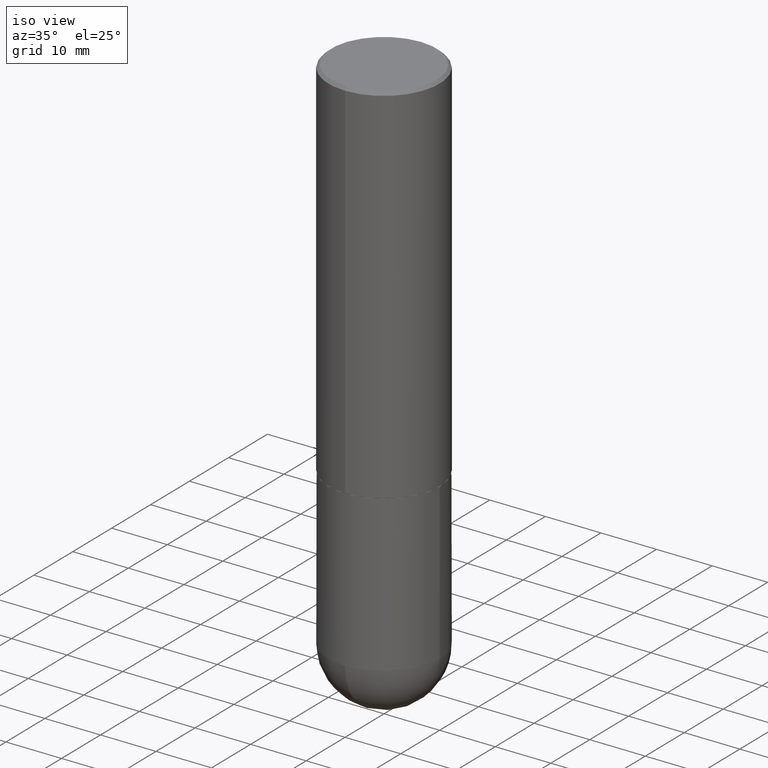
[diagram: clean part render]
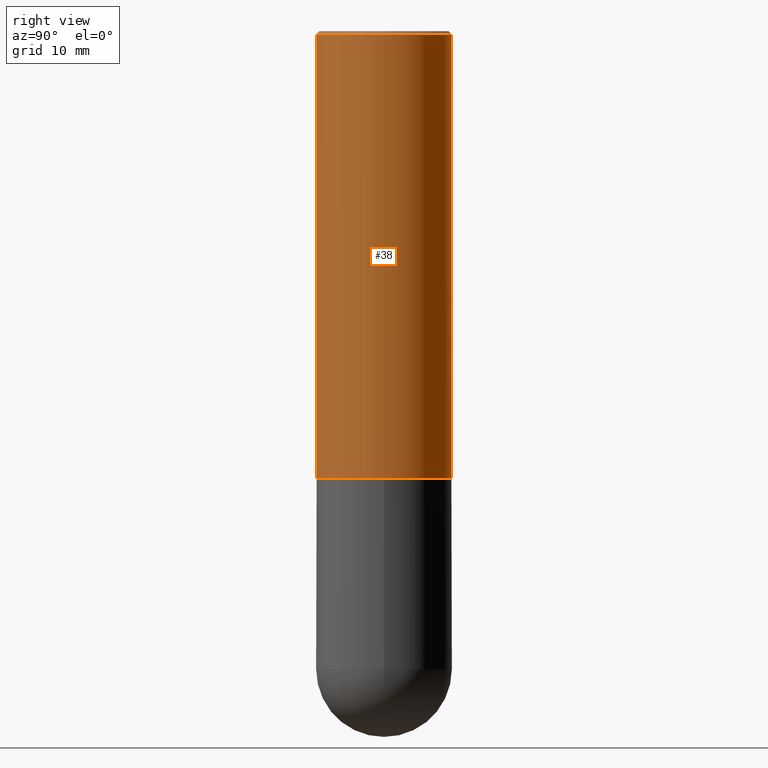
[diagram: tour spotlight — one face highlighted and labeled with its STEP entity id]
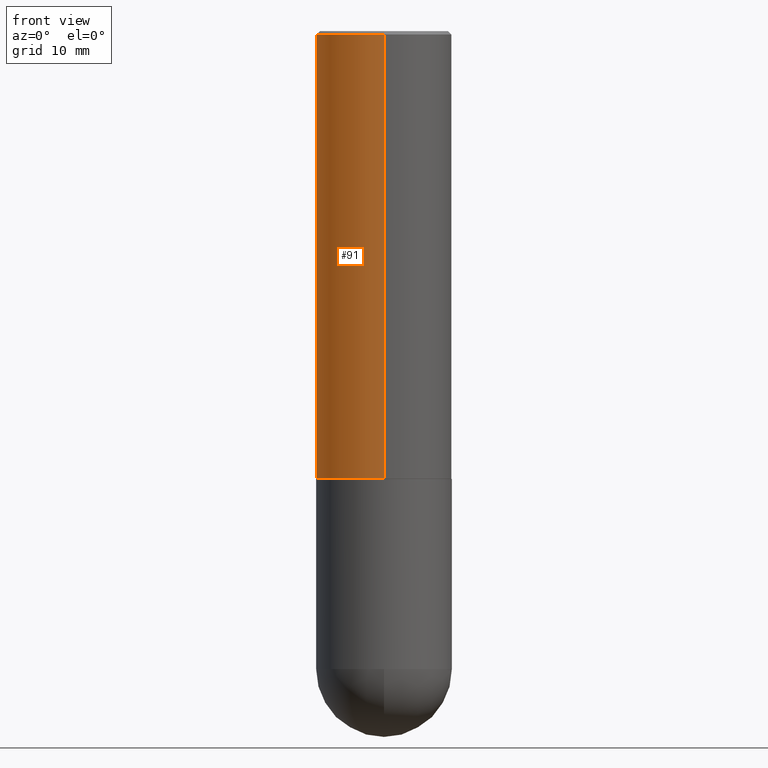
[diagram: tour spotlight — one face highlighted and labeled with its STEP entity id]
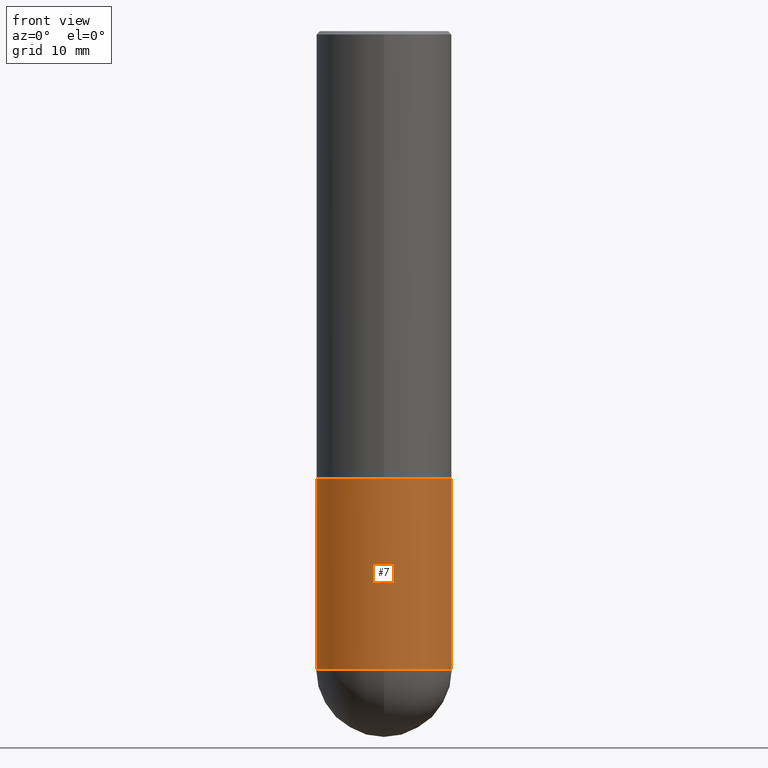
[diagram: tour spotlight — one face highlighted and labeled with its STEP entity id]
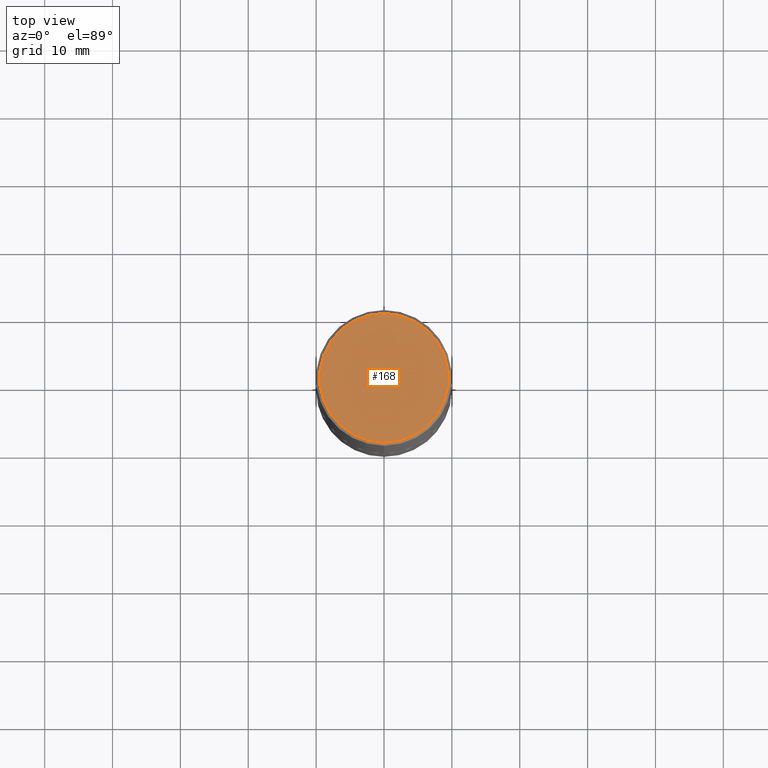
[diagram: tour spotlight — one face highlighted and labeled with its STEP entity id]
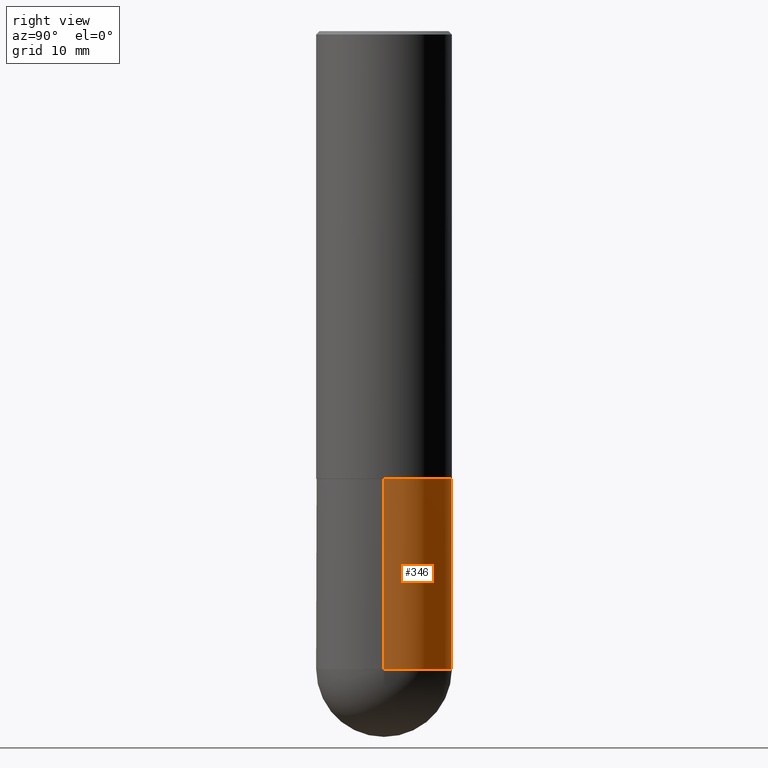
[diagram: tour spotlight — one face highlighted and labeled with its STEP entity id]
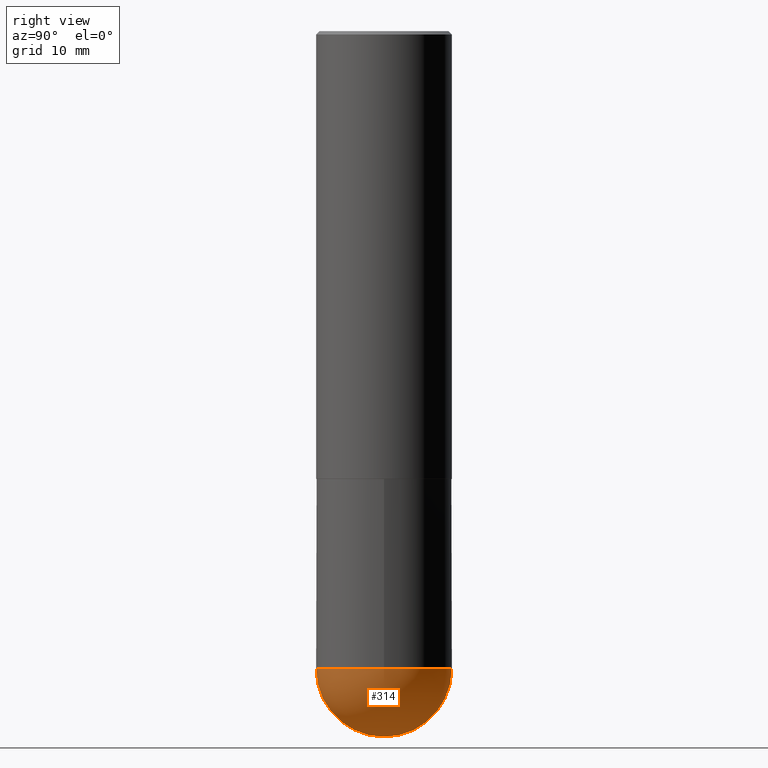
[diagram: tour spotlight — one face highlighted and labeled with its STEP entity id]
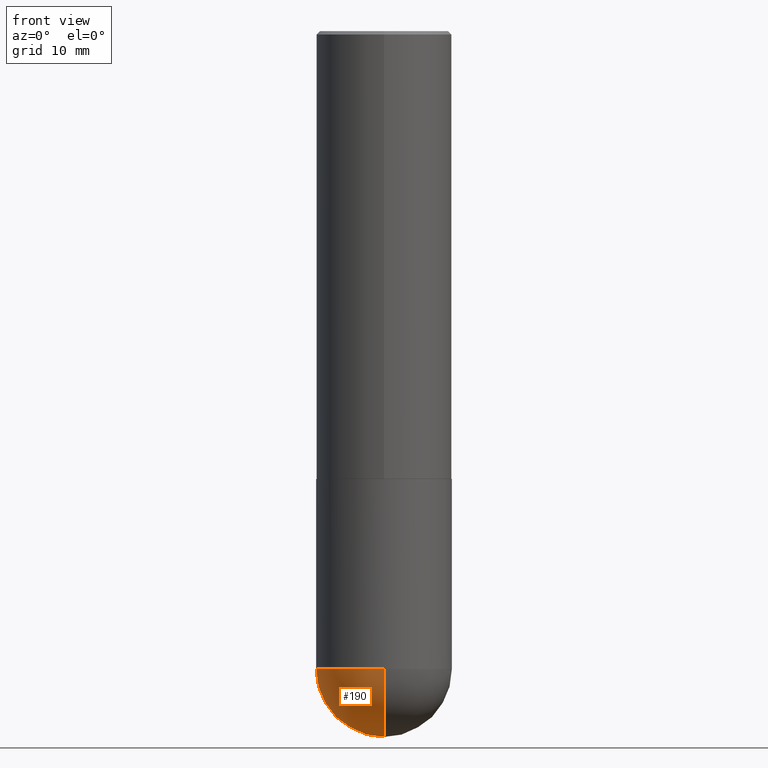
[diagram: tour spotlight — one face highlighted and labeled with its STEP entity id]
A machine part: a face-by-face anatomy tour. The part has 13 B-rep faces; the first image is the clean iso view, then the 7 largest visible faces are spotlighted one at a time (largest first), each with its STEP entity span.

Face 1 — right view, entity #38. In plain terms, the highlighted cylindrical surface (partial cylindrical patch) has radius 10 mm, axis along (-0, 0, 1).
Definition (entity closure, byte-faithful):
#2 = EDGE_CURVE ( 'NONE', #365, #158, #265, .T. ) ;
#27 = AXIS2_PLACEMENT_3D ( 'NONE', #405, #210, #337 ) ;
#38 = ADVANCED_FACE ( 'NONE', ( #132 ), #82, .T. ) ;
#62 = CARTESIAN_POINT ( 'NONE',  ( 6.351852398478368558E-29, -9.068785485090674446E-15, -2.597400000000000375 ) ) ;
#80 = CARTESIAN_POINT ( 'NONE',  ( 2.797406750687515181E-15, 0.3937000000000001609, -1.374598000107876588E-15 ) ) ;
#81 = AXIS2_PLACEMENT_3D ( 'NONE', #171, #296, #141 ) ;
#82 = CYLINDRICAL_SURFACE ( 'NONE', #27, 0.3937000000000001609 ) ;
#93 = ORIENTED_EDGE ( 'NONE', *, *, #275, .F. ) ;
#110 = CARTESIAN_POINT ( 'NONE',  ( -2.700978061722651252E-15, -0.3937000000000001054, -0.01999999999999871672 ) ) ;
#114 = CIRCLE ( 'NONE', #312, 0.3937000000000002720 ) ;
#132 = FACE_OUTER_BOUND ( 'NONE', #224, .T. ) ;
#135 = VERTEX_POINT ( 'NONE', #304 ) ;
#139 = DIRECTION ( 'NONE',  ( -2.445465618879790476E-29, 3.491485903245811789E-15, 1.000000000000000000 ) ) ;
#141 = DIRECTION ( 'NONE',  ( -6.982962677686265133E-15, -1.000000000000000000, 3.491137977679279424E-15 ) ) ;
#146 = CARTESIAN_POINT ( 'NONE',  ( -2.749192406205084005E-15, -0.3937000000000001609, 1.374598000107876588E-15 ) ) ;
#158 = VERTEX_POINT ( 'NONE', #110 ) ;
#171 = CARTESIAN_POINT ( 'NONE',  ( 4.890931237759601867E-31, -6.982971806491655133E-17, -0.02000000000000009062 ) ) ;
#188 = VECTOR ( 'NONE', #213, 39.37007874015748143 ) ;
#193 = VERTEX_POINT ( 'NONE', #260 ) ;
#210 = DIRECTION ( 'NONE',  ( -2.445465618879790196E-29, 3.491485903245811789E-15, 1.000000000000000000 ) ) ;
#213 = DIRECTION ( 'NONE',  ( -2.445465618879790476E-29, 3.491485903245811789E-15, 1.000000000000000000 ) ) ;
#217 = EDGE_CURVE ( 'NONE', #193, #135, #360, .T. ) ;
#224 = EDGE_LOOP ( 'NONE', ( #281, #399, #93, #287 ) ) ;
#231 = CARTESIAN_POINT ( 'NONE',  ( -2.749192406205021291E-15, -0.3937000000000093758, -2.597399999999999043 ) ) ;
#253 = DIRECTION ( 'NONE',  ( -6.982962677686265922E-15, -1.000000000000000000, 4.163344669033672479E-15 ) ) ;
#260 = CARTESIAN_POINT ( 'NONE',  ( 2.797406750687547524E-15, 0.3936999999999912236, -2.597400000000002152 ) ) ;
#265 = LINE ( 'NONE', #146, #282 ) ;
#275 = EDGE_CURVE ( 'NONE', #158, #135, #290, .T. ) ;
#279 = DIRECTION ( 'NONE',  ( -2.445465618879790196E-29, 3.491485903245811789E-15, 1.000000000000000000 ) ) ;
#281 = ORIENTED_EDGE ( 'NONE', *, *, #307, .T. ) ;
#282 = VECTOR ( 'NONE', #139, 39.37007874015748143 ) ;
#287 = ORIENTED_EDGE ( 'NONE', *, *, #2, .F. ) ;
#290 = CIRCLE ( 'NONE', #81, 0.3937000000000000499 ) ;
#296 = DIRECTION ( 'NONE',  ( -2.445465618879790196E-29, 3.491485903245811789E-15, 1.000000000000000000 ) ) ;
#304 = CARTESIAN_POINT ( 'NONE',  ( 2.749192406205083217E-15, 0.3936999999999999389, -0.02000000000000146452 ) ) ;
#307 = EDGE_CURVE ( 'NONE', #365, #193, #114, .T. ) ;
#312 = AXIS2_PLACEMENT_3D ( 'NONE', #62, #279, #253 ) ;
#337 = DIRECTION ( 'NONE',  ( -6.982962677686265922E-15, -1.000000000000000000, 3.491485903245811789E-15 ) ) ;
#360 = LINE ( 'NONE', #80, #188 ) ;
#365 = VERTEX_POINT ( 'NONE', #231 ) ;
#399 = ORIENTED_EDGE ( 'NONE', *, *, #217, .T. ) ;
#405 = CARTESIAN_POINT ( 'NONE',  ( 0.000000000000000000, 0.000000000000000000, 0.000000000000000000 ) ) ;

Face 2 — front view, entity #91. In plain terms, the highlighted cylindrical surface (partial cylindrical patch) has radius 10 mm, axis along (-0, 0, 1).
Definition (entity closure, byte-faithful):
#2 = EDGE_CURVE ( 'NONE', #365, #158, #265, .T. ) ;
#16 = DIRECTION ( 'NONE',  ( -6.982962677686265133E-15, -1.000000000000000000, 3.491137977679279424E-15 ) ) ;
#32 = EDGE_CURVE ( 'NONE', #193, #365, #47, .T. ) ;
#39 = AXIS2_PLACEMENT_3D ( 'NONE', #268, #359, #43 ) ;
#41 = DIRECTION ( 'NONE',  ( -6.982962677686265922E-15, -1.000000000000000000, 3.491485903245811789E-15 ) ) ;
#43 = DIRECTION ( 'NONE',  ( -6.982962677686265922E-15, -1.000000000000000000, 4.163344669033672479E-15 ) ) ;
#47 = CIRCLE ( 'NONE', #39, 0.3937000000000002720 ) ;
#49 = AXIS2_PLACEMENT_3D ( 'NONE', #107, #180, #41 ) ;
#80 = CARTESIAN_POINT ( 'NONE',  ( 2.797406750687515181E-15, 0.3937000000000001609, -1.374598000107876588E-15 ) ) ;
#87 = AXIS2_PLACEMENT_3D ( 'NONE', #403, #274, #16 ) ;
#91 = ADVANCED_FACE ( 'NONE', ( #179 ), #211, .T. ) ;
#107 = CARTESIAN_POINT ( 'NONE',  ( 0.000000000000000000, 0.000000000000000000, 0.000000000000000000 ) ) ;
#110 = CARTESIAN_POINT ( 'NONE',  ( -2.700978061722651252E-15, -0.3937000000000001054, -0.01999999999999871672 ) ) ;
#125 = CIRCLE ( 'NONE', #87, 0.3937000000000000499 ) ;
#135 = VERTEX_POINT ( 'NONE', #304 ) ;
#137 = EDGE_CURVE ( 'NONE', #135, #158, #125, .T. ) ;
#139 = DIRECTION ( 'NONE',  ( -2.445465618879790476E-29, 3.491485903245811789E-15, 1.000000000000000000 ) ) ;
#143 = ORIENTED_EDGE ( 'NONE', *, *, #2, .T. ) ;
#146 = CARTESIAN_POINT ( 'NONE',  ( -2.749192406205084005E-15, -0.3937000000000001609, 1.374598000107876588E-15 ) ) ;
#158 = VERTEX_POINT ( 'NONE', #110 ) ;
#179 = FACE_OUTER_BOUND ( 'NONE', #371, .T. ) ;
#180 = DIRECTION ( 'NONE',  ( -2.445465618879790196E-29, 3.491485903245811789E-15, 1.000000000000000000 ) ) ;
#188 = VECTOR ( 'NONE', #213, 39.37007874015748143 ) ;
#193 = VERTEX_POINT ( 'NONE', #260 ) ;
#211 = CYLINDRICAL_SURFACE ( 'NONE', #49, 0.3937000000000001609 ) ;
#213 = DIRECTION ( 'NONE',  ( -2.445465618879790476E-29, 3.491485903245811789E-15, 1.000000000000000000 ) ) ;
#217 = EDGE_CURVE ( 'NONE', #193, #135, #360, .T. ) ;
#231 = CARTESIAN_POINT ( 'NONE',  ( -2.749192406205021291E-15, -0.3937000000000093758, -2.597399999999999043 ) ) ;
#251 = ORIENTED_EDGE ( 'NONE', *, *, #217, .F. ) ;
#260 = CARTESIAN_POINT ( 'NONE',  ( 2.797406750687547524E-15, 0.3936999999999912236, -2.597400000000002152 ) ) ;
#265 = LINE ( 'NONE', #146, #282 ) ;
#268 = CARTESIAN_POINT ( 'NONE',  ( 6.351852398478368558E-29, -9.068785485090674446E-15, -2.597400000000000375 ) ) ;
#274 = DIRECTION ( 'NONE',  ( -2.445465618879790196E-29, 3.491485903245811789E-15, 1.000000000000000000 ) ) ;
#282 = VECTOR ( 'NONE', #139, 39.37007874015748143 ) ;
#285 = ORIENTED_EDGE ( 'NONE', *, *, #32, .T. ) ;
#304 = CARTESIAN_POINT ( 'NONE',  ( 2.749192406205083217E-15, 0.3936999999999999389, -0.02000000000000146452 ) ) ;
#352 = ORIENTED_EDGE ( 'NONE', *, *, #137, .F. ) ;
#359 = DIRECTION ( 'NONE',  ( -2.445465618879790196E-29, 3.491485903245811789E-15, 1.000000000000000000 ) ) ;
#360 = LINE ( 'NONE', #80, #188 ) ;
#365 = VERTEX_POINT ( 'NONE', #231 ) ;
#371 = EDGE_LOOP ( 'NONE', ( #251, #285, #143, #352 ) ) ;
#403 = CARTESIAN_POINT ( 'NONE',  ( 4.890931237759601867E-31, -6.982971806491655133E-17, -0.02000000000000009062 ) ) ;

Face 3 — front view, entity #7. In plain terms, the highlighted cylindrical surface (partial cylindrical patch) has radius 10 mm, axis along (-0, 0, 1).
Definition (entity closure, byte-faithful):
#7 = ADVANCED_FACE ( 'NONE', ( #233 ), #207, .T. ) ;
#9 = DIRECTION ( 'NONE',  ( -2.445468806185136597E-29, 3.491481338843145583E-15, 1.000000000000000000 ) ) ;
#10 = VERTEX_POINT ( 'NONE', #177 ) ;
#11 = CARTESIAN_POINT ( 'NONE',  ( 9.050190957929953666E-29, -1.292127413879071357E-14, -3.700800000000000090 ) ) ;
#23 = DIRECTION ( 'NONE',  ( -2.445468806185136597E-29, 3.491481338843145583E-15, 1.000000000000000000 ) ) ;
#30 = AXIS2_PLACEMENT_3D ( 'NONE', #11, #392, #96 ) ;
#34 = CARTESIAN_POINT ( 'NONE',  ( -0.3937000000000000499, -8.199362874132856734E-15, -2.598400000000000265 ) ) ;
#48 = DIRECTION ( 'NONE',  ( 1.000000000000000000, -6.982962677686267499E-15, 0.000000000000000000 ) ) ;
#55 = LINE ( 'NONE', #328, #183 ) ;
#57 = EDGE_CURVE ( 'NONE', #194, #388, #295, .T. ) ;
#64 = VECTOR ( 'NONE', #164, 39.37007874015748143 ) ;
#73 = ORIENTED_EDGE ( 'NONE', *, *, #257, .F. ) ;
#75 = ORIENTED_EDGE ( 'NONE', *, *, #336, .T. ) ;
#85 = DIRECTION ( 'NONE',  ( -2.445468806185136877E-29, 3.491481338843145188E-15, 1.000000000000000000 ) ) ;
#86 = AXIS2_PLACEMENT_3D ( 'NONE', #262, #402, #334 ) ;
#92 = AXIS2_PLACEMENT_3D ( 'NONE', #308, #23, #48 ) ;
#96 = DIRECTION ( 'NONE',  ( 1.000000000000000000, -6.982962677686266711E-15, 0.000000000000000000 ) ) ;
#105 = CARTESIAN_POINT ( 'NONE',  ( 0.3937000000000001054, -2.749192406205084005E-15, 1.919750796630860452E-29 ) ) ;
#106 = EDGE_CURVE ( 'NONE', #326, #388, #159, .T. ) ;
#129 = AXIS2_PLACEMENT_3D ( 'NONE', #289, #9, #131 ) ;
#131 = DIRECTION ( 'NONE',  ( 1.000000000000000000, -6.982962677686266711E-15, 0.000000000000000000 ) ) ;
#159 = CIRCLE ( 'NONE', #92, 0.3937000000000000499 ) ;
#164 = DIRECTION ( 'NONE',  ( -2.445468806185136877E-29, 3.491481338843145188E-15, 1.000000000000000000 ) ) ;
#167 = ORIENTED_EDGE ( 'NONE', *, *, #106, .F. ) ;
#169 = CARTESIAN_POINT ( 'NONE',  ( 0.3937000000000001054, -1.374596203102546026E-14, -3.700800000000000090 ) ) ;
#177 = CARTESIAN_POINT ( 'NONE',  ( -0.3937000000000001054, -8.199362874132859889E-15, -3.700800000000000090 ) ) ;
#183 = VECTOR ( 'NONE', #85, 39.37007874015748143 ) ;
#194 = VERTEX_POINT ( 'NONE', #169 ) ;
#201 = EDGE_LOOP ( 'NONE', ( #73, #75, #255, #384, #167 ) ) ;
#207 = CYLINDRICAL_SURFACE ( 'NONE', #86, 0.3937000000000001054 ) ;
#233 = FACE_OUTER_BOUND ( 'NONE', #201, .T. ) ;
#255 = ORIENTED_EDGE ( 'NONE', *, *, #327, .T. ) ;
#257 = EDGE_CURVE ( 'NONE', #10, #326, #55, .T. ) ;
#262 = CARTESIAN_POINT ( 'NONE',  ( 0.000000000000000000, 0.000000000000000000, 0.000000000000000000 ) ) ;
#283 = CIRCLE ( 'NONE', #30, 0.3937000000000001054 ) ;
#289 = CARTESIAN_POINT ( 'NONE',  ( 9.050190957929953666E-29, -1.292127413879071357E-14, -3.700800000000000090 ) ) ;
#293 = VERTEX_POINT ( 'NONE', #375 ) ;
#295 = LINE ( 'NONE', #105, #64 ) ;
#308 = CARTESIAN_POINT ( 'NONE',  ( 6.354306145991459756E-29, -9.072265110850031044E-15, -2.598400000000000265 ) ) ;
#320 = CARTESIAN_POINT ( 'NONE',  ( 0.3937000000000000499, -1.182145751705511584E-14, -2.598400000000000265 ) ) ;
#326 = VERTEX_POINT ( 'NONE', #34 ) ;
#327 = EDGE_CURVE ( 'NONE', #293, #194, #377, .T. ) ;
#328 = CARTESIAN_POINT ( 'NONE',  ( -0.3937000000000001054, 2.797406750687515181E-15, -1.936584745033357016E-29 ) ) ;
#334 = DIRECTION ( 'NONE',  ( 1.000000000000000000, -6.982962677686266711E-15, 4.876176775795935793E-29 ) ) ;
#336 = EDGE_CURVE ( 'NONE', #10, #293, #283, .T. ) ;
#375 = CARTESIAN_POINT ( 'NONE',  ( -2.797406750687426828E-15, -0.3937000000000133171, -3.700799999999998313 ) ) ;
#377 = CIRCLE ( 'NONE', #129, 0.3937000000000001054 ) ;
#384 = ORIENTED_EDGE ( 'NONE', *, *, #57, .T. ) ;
#388 = VERTEX_POINT ( 'NONE', #320 ) ;
#392 = DIRECTION ( 'NONE',  ( -2.445468806185136597E-29, 3.491481338843145583E-15, 1.000000000000000000 ) ) ;
#402 = DIRECTION ( 'NONE',  ( -2.445468806185136597E-29, 3.491481338843145583E-15, 1.000000000000000000 ) ) ;

Face 4 — top view, entity #168. In plain terms, the highlighted planar face has unit normal (0, -0, -1).
Definition (entity closure, byte-faithful):
#21 = VERTEX_POINT ( 'NONE', #109 ) ;
#31 = AXIS2_PLACEMENT_3D ( 'NONE', #166, #332, #50 ) ;
#50 = DIRECTION ( 'NONE',  ( -6.982962677686265922E-15, -1.000000000000000000, 3.491485903245811789E-15 ) ) ;
#52 = DIRECTION ( 'NONE',  ( -2.445465618879790196E-29, 3.491485903245811789E-15, 1.000000000000000000 ) ) ;
#68 = VERTEX_POINT ( 'NONE', #150 ) ;
#77 = PLANE ( 'NONE',  #315 ) ;
#90 = DIRECTION ( 'NONE',  ( -6.982962677686265922E-15, -1.000000000000000000, 3.491485903245811789E-15 ) ) ;
#109 = CARTESIAN_POINT ( 'NONE',  ( -2.632373081744936315E-15, -0.3737000000000000322, 1.291964450289935158E-15 ) ) ;
#115 = DIRECTION ( 'NONE',  ( 6.982962677686265922E-15, 1.000000000000000000, -3.491485903245811789E-15 ) ) ;
#136 = CARTESIAN_POINT ( 'NONE',  ( 2.609533152651357803E-15, 0.3737000000000000322, -1.311170197919472574E-15 ) ) ;
#150 = CARTESIAN_POINT ( 'NONE',  ( 2.679362779428220707E-15, 0.3737000000000000322, -1.317572113795984915E-15 ) ) ;
#156 = CIRCLE ( 'NONE', #31, 0.3737000000000000322 ) ;
#166 = CARTESIAN_POINT ( 'NONE',  ( 3.131133034194372146E-46, -4.470439807321751239E-32, -1.280383175302489090E-17 ) ) ;
#168 = ADVANCED_FACE ( 'NONE', ( #363 ), #77, .F. ) ;
#192 = AXIS2_PLACEMENT_3D ( 'NONE', #209, #52, #90 ) ;
#209 = CARTESIAN_POINT ( 'NONE',  ( 3.131133034194372146E-46, -4.470439807321751239E-32, -1.280383175302489090E-17 ) ) ;
#221 = EDGE_LOOP ( 'NONE', ( #391, #386 ) ) ;
#223 = CIRCLE ( 'NONE', #192, 0.3737000000000000322 ) ;
#288 = EDGE_CURVE ( 'NONE', #68, #21, #223, .T. ) ;
#315 = AXIS2_PLACEMENT_3D ( 'NONE', #136, #409, #115 ) ;
#332 = DIRECTION ( 'NONE',  ( -2.445465618879790196E-29, 3.491485903245811789E-15, 1.000000000000000000 ) ) ;
#363 = FACE_OUTER_BOUND ( 'NONE', #221, .T. ) ;
#378 = EDGE_CURVE ( 'NONE', #21, #68, #156, .T. ) ;
#386 = ORIENTED_EDGE ( 'NONE', *, *, #378, .T. ) ;
#391 = ORIENTED_EDGE ( 'NONE', *, *, #288, .T. ) ;
#409 = DIRECTION ( 'NONE',  ( 2.445465618879789916E-29, -3.491485903245811789E-15, -1.000000000000000000 ) ) ;

Face 5 — right view, entity #346. In plain terms, the highlighted cylindrical surface (partial cylindrical patch) has radius 10 mm, axis along (-0, 0, 1).
Definition (entity closure, byte-faithful):
#1 = AXIS2_PLACEMENT_3D ( 'NONE', #306, #272, #25 ) ;
#10 = VERTEX_POINT ( 'NONE', #177 ) ;
#25 = DIRECTION ( 'NONE',  ( 1.000000000000000000, -6.982962677686266711E-15, 0.000000000000000000 ) ) ;
#34 = CARTESIAN_POINT ( 'NONE',  ( -0.3937000000000000499, -8.199362874132856734E-15, -2.598400000000000265 ) ) ;
#54 = CARTESIAN_POINT ( 'NONE',  ( 2.749192406205173147E-15, 0.3936999999999871158, -3.700800000000001866 ) ) ;
#55 = LINE ( 'NONE', #328, #183 ) ;
#57 = EDGE_CURVE ( 'NONE', #194, #388, #295, .T. ) ;
#64 = VECTOR ( 'NONE', #164, 39.37007874015748143 ) ;
#65 = DIRECTION ( 'NONE',  ( 1.000000000000000000, -6.982962677686266711E-15, 4.876176775795935793E-29 ) ) ;
#66 = ORIENTED_EDGE ( 'NONE', *, *, #124, .F. ) ;
#71 = CARTESIAN_POINT ( 'NONE',  ( 9.050190957929953666E-29, -1.292127413879071357E-14, -3.700800000000000090 ) ) ;
#72 = ORIENTED_EDGE ( 'NONE', *, *, #57, .F. ) ;
#76 = EDGE_CURVE ( 'NONE', #79, #10, #254, .T. ) ;
#78 = DIRECTION ( 'NONE',  ( 1.000000000000000000, -6.982962677686266711E-15, 0.000000000000000000 ) ) ;
#79 = VERTEX_POINT ( 'NONE', #54 ) ;
#85 = DIRECTION ( 'NONE',  ( -2.445468806185136877E-29, 3.491481338843145188E-15, 1.000000000000000000 ) ) ;
#102 = AXIS2_PLACEMENT_3D ( 'NONE', #71, #235, #78 ) ;
#105 = CARTESIAN_POINT ( 'NONE',  ( 0.3937000000000001054, -2.749192406205084005E-15, 1.919750796630860452E-29 ) ) ;
#124 = EDGE_CURVE ( 'NONE', #388, #326, #398, .T. ) ;
#133 = DIRECTION ( 'NONE',  ( -2.445468806185136597E-29, 3.491481338843145583E-15, 1.000000000000000000 ) ) ;
#148 = DIRECTION ( 'NONE',  ( -2.445468806185136597E-29, 3.491481338843145583E-15, 1.000000000000000000 ) ) ;
#152 = CARTESIAN_POINT ( 'NONE',  ( 6.354306145991459756E-29, -9.072265110850031044E-15, -2.598400000000000265 ) ) ;
#164 = DIRECTION ( 'NONE',  ( -2.445468806185136877E-29, 3.491481338843145188E-15, 1.000000000000000000 ) ) ;
#169 = CARTESIAN_POINT ( 'NONE',  ( 0.3937000000000001054, -1.374596203102546026E-14, -3.700800000000000090 ) ) ;
#175 = DIRECTION ( 'NONE',  ( 1.000000000000000000, -6.982962677686267499E-15, 0.000000000000000000 ) ) ;
#177 = CARTESIAN_POINT ( 'NONE',  ( -0.3937000000000001054, -8.199362874132859889E-15, -3.700800000000000090 ) ) ;
#183 = VECTOR ( 'NONE', #85, 39.37007874015748143 ) ;
#194 = VERTEX_POINT ( 'NONE', #169 ) ;
#196 = CARTESIAN_POINT ( 'NONE',  ( 0.000000000000000000, 0.000000000000000000, 0.000000000000000000 ) ) ;
#198 = EDGE_LOOP ( 'NONE', ( #355, #348, #66, #72, #362 ) ) ;
#226 = FACE_OUTER_BOUND ( 'NONE', #198, .T. ) ;
#235 = DIRECTION ( 'NONE',  ( -2.445468806185136597E-29, 3.491481338843145583E-15, 1.000000000000000000 ) ) ;
#254 = CIRCLE ( 'NONE', #1, 0.3937000000000001054 ) ;
#257 = EDGE_CURVE ( 'NONE', #10, #326, #55, .T. ) ;
#272 = DIRECTION ( 'NONE',  ( -2.445468806185136597E-29, 3.491481338843145583E-15, 1.000000000000000000 ) ) ;
#278 = CIRCLE ( 'NONE', #102, 0.3937000000000001054 ) ;
#295 = LINE ( 'NONE', #105, #64 ) ;
#306 = CARTESIAN_POINT ( 'NONE',  ( 9.050190957929953666E-29, -1.292127413879071357E-14, -3.700800000000000090 ) ) ;
#320 = CARTESIAN_POINT ( 'NONE',  ( 0.3937000000000000499, -1.182145751705511584E-14, -2.598400000000000265 ) ) ;
#322 = AXIS2_PLACEMENT_3D ( 'NONE', #152, #148, #175 ) ;
#326 = VERTEX_POINT ( 'NONE', #34 ) ;
#328 = CARTESIAN_POINT ( 'NONE',  ( -0.3937000000000001054, 2.797406750687515181E-15, -1.936584745033357016E-29 ) ) ;
#342 = AXIS2_PLACEMENT_3D ( 'NONE', #196, #133, #65 ) ;
#346 = ADVANCED_FACE ( 'NONE', ( #226 ), #353, .T. ) ;
#348 = ORIENTED_EDGE ( 'NONE', *, *, #257, .T. ) ;
#353 = CYLINDRICAL_SURFACE ( 'NONE', #342, 0.3937000000000001054 ) ;
#355 = ORIENTED_EDGE ( 'NONE', *, *, #76, .T. ) ;
#362 = ORIENTED_EDGE ( 'NONE', *, *, #368, .T. ) ;
#368 = EDGE_CURVE ( 'NONE', #194, #79, #278, .T. ) ;
#388 = VERTEX_POINT ( 'NONE', #320 ) ;
#398 = CIRCLE ( 'NONE', #322, 0.3937000000000000499 ) ;

Face 6 — right view, entity #314. In plain terms, the highlighted spherical surface has radius 10 mm.
Definition (entity closure, byte-faithful):
#9 = DIRECTION ( 'NONE',  ( -2.445468806185136597E-29, 3.491481338843145583E-15, 1.000000000000000000 ) ) ;
#19 = ORIENTED_EDGE ( 'NONE', *, *, #327, .F. ) ;
#36 = DIRECTION ( 'NONE',  ( 6.982962677686265922E-15, 1.000000000000000000, -4.163344669033671690E-15 ) ) ;
#51 = ORIENTED_EDGE ( 'NONE', *, *, #252, .F. ) ;
#54 = CARTESIAN_POINT ( 'NONE',  ( 2.749192406205173147E-15, 0.3936999999999871158, -3.700800000000001866 ) ) ;
#67 = EDGE_CURVE ( 'NONE', #300, #79, #390, .T. ) ;
#71 = CARTESIAN_POINT ( 'NONE',  ( 9.050190957929953666E-29, -1.292127413879071357E-14, -3.700800000000000090 ) ) ;
#74 = DIRECTION ( 'NONE',  ( -7.105427357600999492E-15, -1.000000000000000000, 0.000000000000000000 ) ) ;
#78 = DIRECTION ( 'NONE',  ( 1.000000000000000000, -6.982962677686266711E-15, 0.000000000000000000 ) ) ;
#79 = VERTEX_POINT ( 'NONE', #54 ) ;
#98 = DIRECTION ( 'NONE',  ( 6.982962677686265133E-15, 1.000000000000000000, 0.000000000000000000 ) ) ;
#102 = AXIS2_PLACEMENT_3D ( 'NONE', #71, #235, #78 ) ;
#129 = AXIS2_PLACEMENT_3D ( 'NONE', #289, #9, #131 ) ;
#131 = DIRECTION ( 'NONE',  ( 1.000000000000000000, -6.982962677686266711E-15, 0.000000000000000000 ) ) ;
#140 = AXIS2_PLACEMENT_3D ( 'NONE', #294, #397, #74 ) ;
#163 = AXIS2_PLACEMENT_3D ( 'NONE', #291, #393, #98 ) ;
#165 = CARTESIAN_POINT ( 'NONE',  ( 8.719071180016067419E-29, -1.339545650693076387E-14, -3.700800000000000090 ) ) ;
#169 = CARTESIAN_POINT ( 'NONE',  ( 0.3937000000000001054, -1.374596203102546026E-14, -3.700800000000000090 ) ) ;
#194 = VERTEX_POINT ( 'NONE', #169 ) ;
#195 = EDGE_LOOP ( 'NONE', ( #51, #225, #236, #19 ) ) ;
#208 = CIRCLE ( 'NONE', #140, 0.3937000000000003830 ) ;
#216 = CARTESIAN_POINT ( 'NONE',  ( 9.698686197413653023E-29, -1.474594553779209640E-14, -4.094500000000000028 ) ) ;
#220 = FACE_OUTER_BOUND ( 'NONE', #195, .T. ) ;
#225 = ORIENTED_EDGE ( 'NONE', *, *, #67, .T. ) ;
#232 = AXIS2_PLACEMENT_3D ( 'NONE', #165, #319, #36 ) ;
#235 = DIRECTION ( 'NONE',  ( -2.445468806185136597E-29, 3.491481338843145583E-15, 1.000000000000000000 ) ) ;
#236 = ORIENTED_EDGE ( 'NONE', *, *, #368, .F. ) ;
#252 = EDGE_CURVE ( 'NONE', #300, #293, #208, .T. ) ;
#278 = CIRCLE ( 'NONE', #102, 0.3937000000000001054 ) ;
#289 = CARTESIAN_POINT ( 'NONE',  ( 9.050190957929953666E-29, -1.292127413879071357E-14, -3.700800000000000090 ) ) ;
#291 = CARTESIAN_POINT ( 'NONE',  ( 8.719071180016067419E-29, -1.339545650693076387E-14, -3.700800000000000090 ) ) ;
#293 = VERTEX_POINT ( 'NONE', #375 ) ;
#294 = CARTESIAN_POINT ( 'NONE',  ( 8.719071180016067419E-29, -1.339545650693076387E-14, -3.700800000000000090 ) ) ;
#300 = VERTEX_POINT ( 'NONE', #216 ) ;
#314 = ADVANCED_FACE ( 'NONE', ( #220 ), #350, .T. ) ;
#319 = DIRECTION ( 'NONE',  ( -1.000000000000000000, 6.982962677686265922E-15, -4.883557194083112340E-29 ) ) ;
#327 = EDGE_CURVE ( 'NONE', #293, #194, #377, .T. ) ;
#350 = SPHERICAL_SURFACE ( 'NONE', #232, 0.3937000000000003830 ) ;
#368 = EDGE_CURVE ( 'NONE', #194, #79, #278, .T. ) ;
#375 = CARTESIAN_POINT ( 'NONE',  ( -2.797406750687426828E-15, -0.3937000000000133171, -3.700799999999998313 ) ) ;
#377 = CIRCLE ( 'NONE', #129, 0.3937000000000001054 ) ;
#390 = CIRCLE ( 'NONE', #163, 0.3937000000000003830 ) ;
#393 = DIRECTION ( 'NONE',  ( 1.000000000000000000, -6.982962677686265922E-15, 4.883557194083112340E-29 ) ) ;
#397 = DIRECTION ( 'NONE',  ( -1.000000000000000000, 7.105427357601001070E-15, -4.926315508542082329E-29 ) ) ;

Face 7 — front view, entity #190. In plain terms, the highlighted spherical surface has radius 10 mm.
Definition (entity closure, byte-faithful):
#1 = AXIS2_PLACEMENT_3D ( 'NONE', #306, #272, #25 ) ;
#6 = ORIENTED_EDGE ( 'NONE', *, *, #252, .T. ) ;
#10 = VERTEX_POINT ( 'NONE', #177 ) ;
#11 = CARTESIAN_POINT ( 'NONE',  ( 9.050190957929953666E-29, -1.292127413879071357E-14, -3.700800000000000090 ) ) ;
#13 = ORIENTED_EDGE ( 'NONE', *, *, #67, .F. ) ;
#25 = DIRECTION ( 'NONE',  ( 1.000000000000000000, -6.982962677686266711E-15, 0.000000000000000000 ) ) ;
#30 = AXIS2_PLACEMENT_3D ( 'NONE', #11, #392, #96 ) ;
#54 = CARTESIAN_POINT ( 'NONE',  ( 2.749192406205173147E-15, 0.3936999999999871158, -3.700800000000001866 ) ) ;
#67 = EDGE_CURVE ( 'NONE', #300, #79, #390, .T. ) ;
#74 = DIRECTION ( 'NONE',  ( -7.105427357600999492E-15, -1.000000000000000000, 0.000000000000000000 ) ) ;
#76 = EDGE_CURVE ( 'NONE', #79, #10, #254, .T. ) ;
#79 = VERTEX_POINT ( 'NONE', #54 ) ;
#96 = DIRECTION ( 'NONE',  ( 1.000000000000000000, -6.982962677686266711E-15, 0.000000000000000000 ) ) ;
#98 = DIRECTION ( 'NONE',  ( 6.982962677686265133E-15, 1.000000000000000000, 0.000000000000000000 ) ) ;
#112 = ORIENTED_EDGE ( 'NONE', *, *, #336, .F. ) ;
#117 = SPHERICAL_SURFACE ( 'NONE', #299, 0.3937000000000003830 ) ;
#140 = AXIS2_PLACEMENT_3D ( 'NONE', #294, #397, #74 ) ;
#163 = AXIS2_PLACEMENT_3D ( 'NONE', #291, #393, #98 ) ;
#177 = CARTESIAN_POINT ( 'NONE',  ( -0.3937000000000001054, -8.199362874132859889E-15, -3.700800000000000090 ) ) ;
#190 = ADVANCED_FACE ( 'NONE', ( #241 ), #117, .T. ) ;
#208 = CIRCLE ( 'NONE', #140, 0.3937000000000003830 ) ;
#216 = CARTESIAN_POINT ( 'NONE',  ( 9.698686197413653023E-29, -1.474594553779209640E-14, -4.094500000000000028 ) ) ;
#239 = ORIENTED_EDGE ( 'NONE', *, *, #76, .F. ) ;
#241 = FACE_OUTER_BOUND ( 'NONE', #396, .T. ) ;
#244 = CARTESIAN_POINT ( 'NONE',  ( 8.719071180016067419E-29, -1.339545650693076387E-14, -3.700800000000000090 ) ) ;
#245 = DIRECTION ( 'NONE',  ( -1.000000000000000000, 6.982962677686265922E-15, -4.883557194083112340E-29 ) ) ;
#252 = EDGE_CURVE ( 'NONE', #300, #293, #208, .T. ) ;
#254 = CIRCLE ( 'NONE', #1, 0.3937000000000001054 ) ;
#272 = DIRECTION ( 'NONE',  ( -2.445468806185136597E-29, 3.491481338843145583E-15, 1.000000000000000000 ) ) ;
#283 = CIRCLE ( 'NONE', #30, 0.3937000000000001054 ) ;
#291 = CARTESIAN_POINT ( 'NONE',  ( 8.719071180016067419E-29, -1.339545650693076387E-14, -3.700800000000000090 ) ) ;
#293 = VERTEX_POINT ( 'NONE', #375 ) ;
#294 = CARTESIAN_POINT ( 'NONE',  ( 8.719071180016067419E-29, -1.339545650693076387E-14, -3.700800000000000090 ) ) ;
#299 = AXIS2_PLACEMENT_3D ( 'NONE', #244, #245, #406 ) ;
#300 = VERTEX_POINT ( 'NONE', #216 ) ;
#306 = CARTESIAN_POINT ( 'NONE',  ( 9.050190957929953666E-29, -1.292127413879071357E-14, -3.700800000000000090 ) ) ;
#336 = EDGE_CURVE ( 'NONE', #10, #293, #283, .T. ) ;
#375 = CARTESIAN_POINT ( 'NONE',  ( -2.797406750687426828E-15, -0.3937000000000133171, -3.700799999999998313 ) ) ;
#390 = CIRCLE ( 'NONE', #163, 0.3937000000000003830 ) ;
#392 = DIRECTION ( 'NONE',  ( -2.445468806185136597E-29, 3.491481338843145583E-15, 1.000000000000000000 ) ) ;
#393 = DIRECTION ( 'NONE',  ( 1.000000000000000000, -6.982962677686265922E-15, 4.883557194083112340E-29 ) ) ;
#396 = EDGE_LOOP ( 'NONE', ( #13, #6, #112, #239 ) ) ;
#397 = DIRECTION ( 'NONE',  ( -1.000000000000000000, 7.105427357601001070E-15, -4.926315508542082329E-29 ) ) ;
#406 = DIRECTION ( 'NONE',  ( 6.982962677686265922E-15, 1.000000000000000000, -4.163344669033671690E-15 ) ) ;